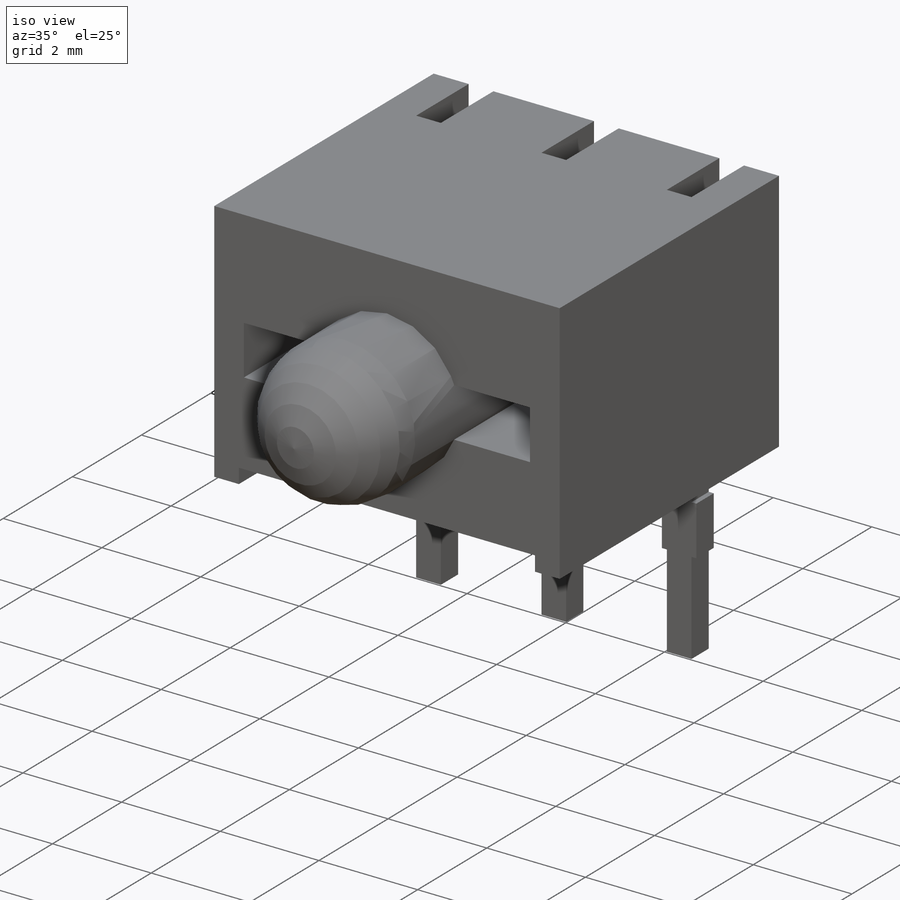
[diagram: iso view]
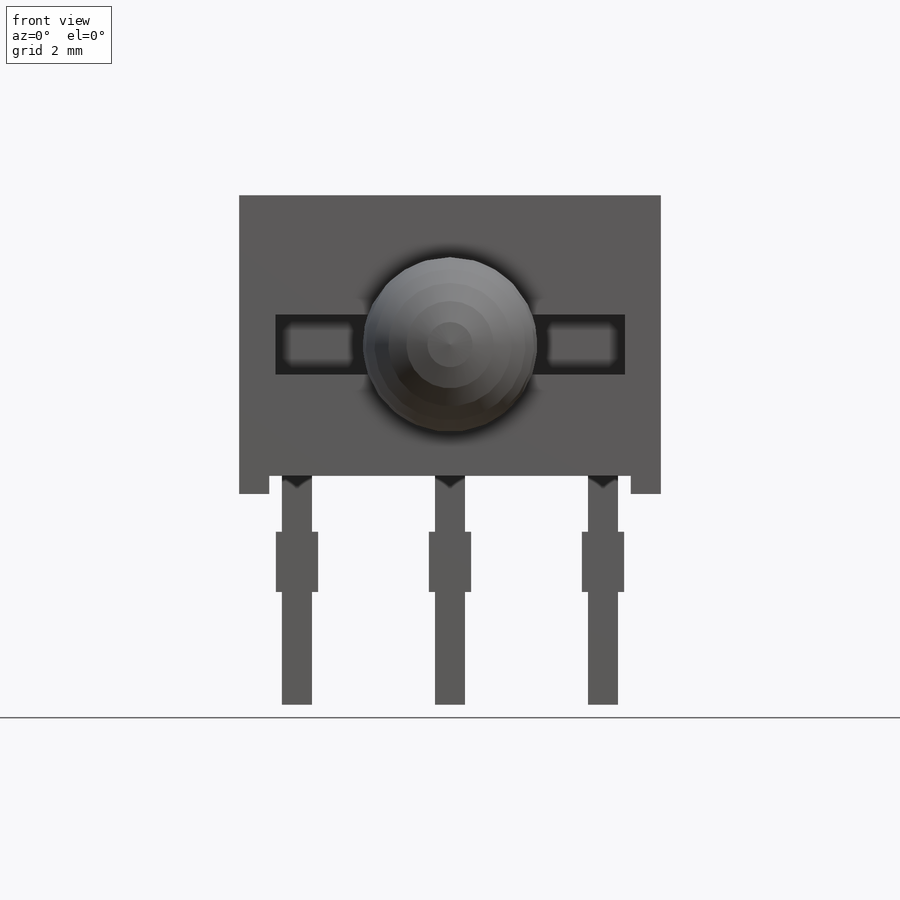
[diagram: front view]
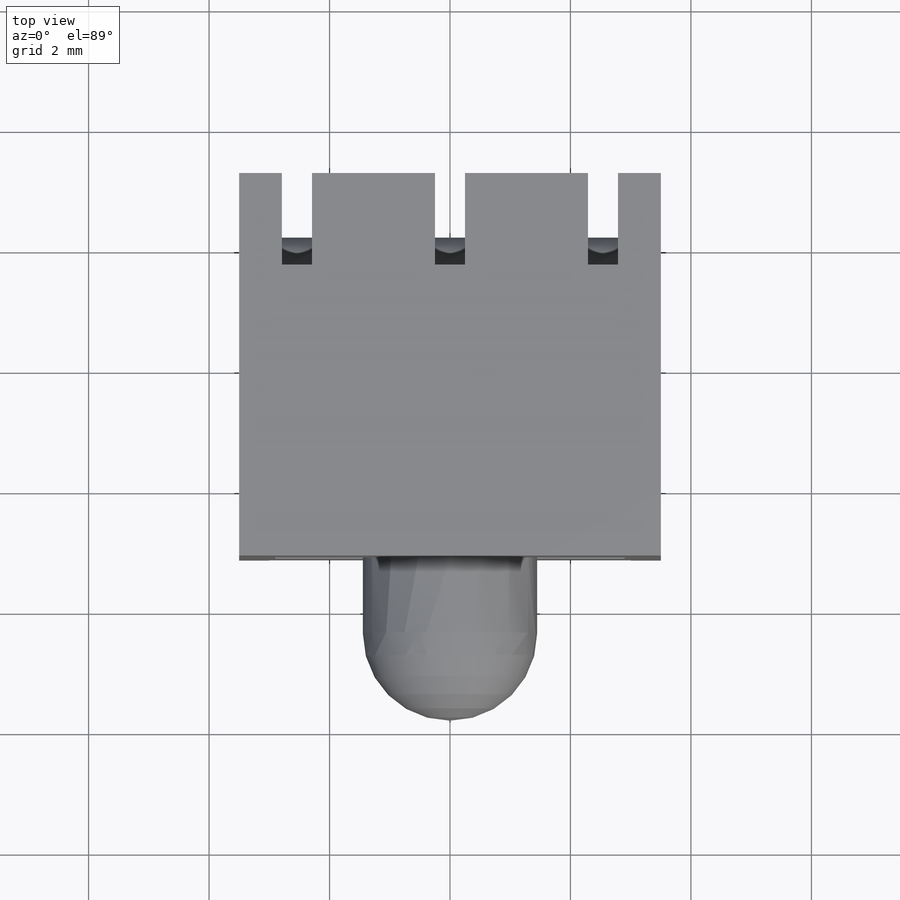
[diagram: top view]
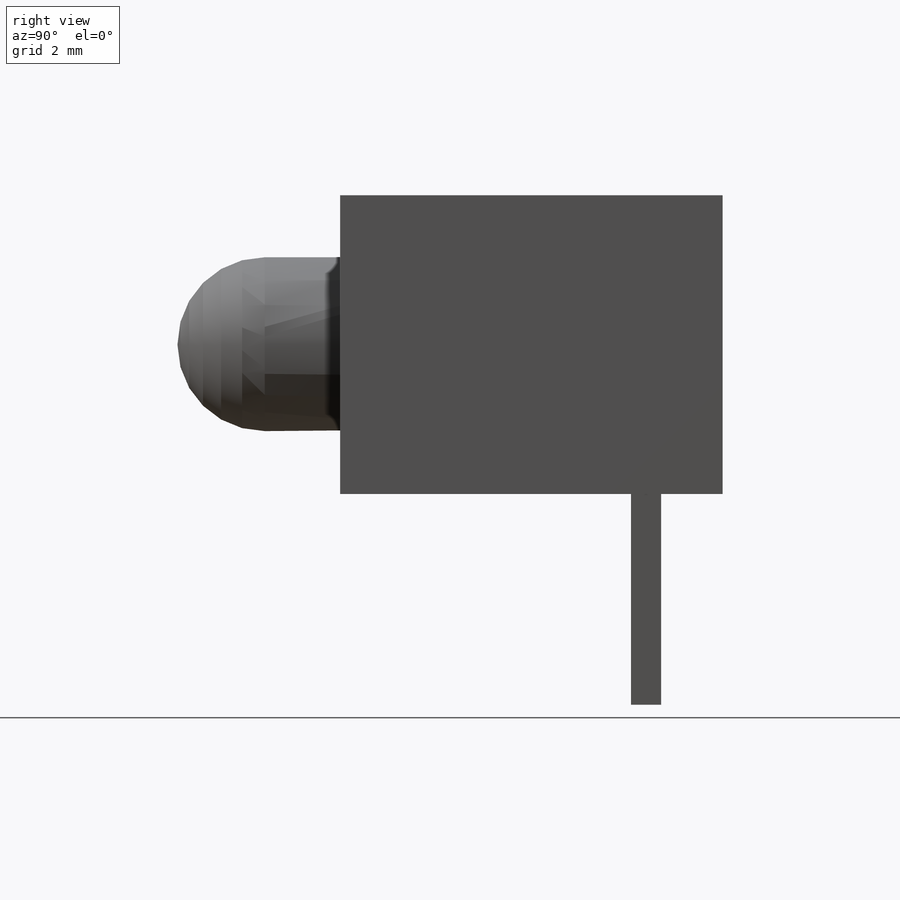
[diagram: right view]
SOLIDWORKS PART (.sldprt)
format: sldprt  version: not decoded by parser v0  size: 818,688 bytes
history: native  units: mm
features: sketch x10, cut_extrude x5, extrude x4, material x1, revolve x1, fillet x1 (+12 scaffold rows collapsed)
feature tree (34):
  scaffold x12  (default folders/planes/origin — collapsed)
  material  "Material <not specified>"
  sketch  "Sketch1"  dims[D1=4.96mm D2=6.35mm]
  extrude  "Extrude1"  Depth=7mm
  sketch  "Sketch2"  dims[D1=2.9mm D2=1.0mm D3=5.8mm D4=0.5mm D5=0.5mm D6=0.3mm]
  cut_extrude  "Cut-Extrude1"  [1 undecoded]
  sketch  "Sketch3"  dims[D2=2.9mm D1=2.7mm]
  revolve  "Revolve1"  Angle=360deg
  sketch  "Sketch4"  dims[c1.D1=0.5mm c1.D2=6.0mm c2.D2=90.0deg c3.D2=5.08mm c3.D3=0.5mm c3.D4=0.5mm c3.D5=0.5mm c3.D6=2.54mm c3.D7=2.54mm]
  cut_extrude  "Cut-Extrude2"  [1 undecoded]
  extrude  "Extrude2"  [1 undecoded]
  sketch  "Sketch4<3>"
  extrude  "Extrude3"  [1 undecoded]
  sketch  "Sketch4<4>"  dims[D1=3.8mm]
  cut_extrude  "Cut-Extrude3"  [1 undecoded]
  sketch  "Sketch4<5>"
  fillet  "Fillet1"  Radius=0.5mm
  cut_extrude  "Cut-Extrude4"  [1 undecoded]
  sketch  "Sketch2<3>"  dims[D1=2.0mm]
  sketch  "Sketch5"  dims[D1=1.0mm D2=0.7mm]
  extrude  "Extrude4"  [1 undecoded]
  sketch  "Sketch6"
  cut_extrude  "Cut-Extrude5"  Depth=0.01mm
decode coverage: 11 of 21 modeling features carry decoded parameters
note: 7 parameter values undecoded
summary: no parameter record found for 7 features
note: suppression state not decoded; provenance and decode notes live in map.json
